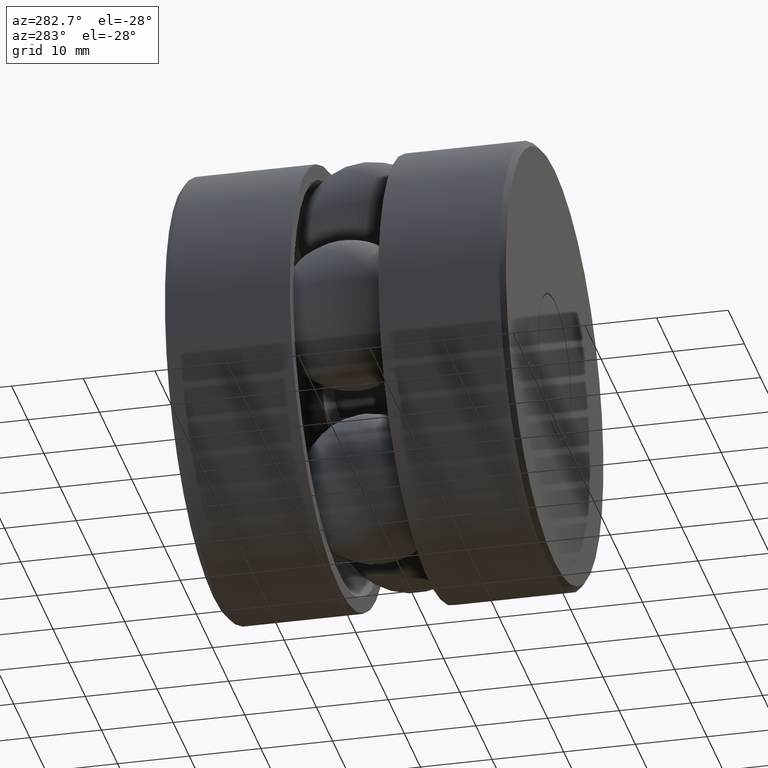
[diagram: clean part render]
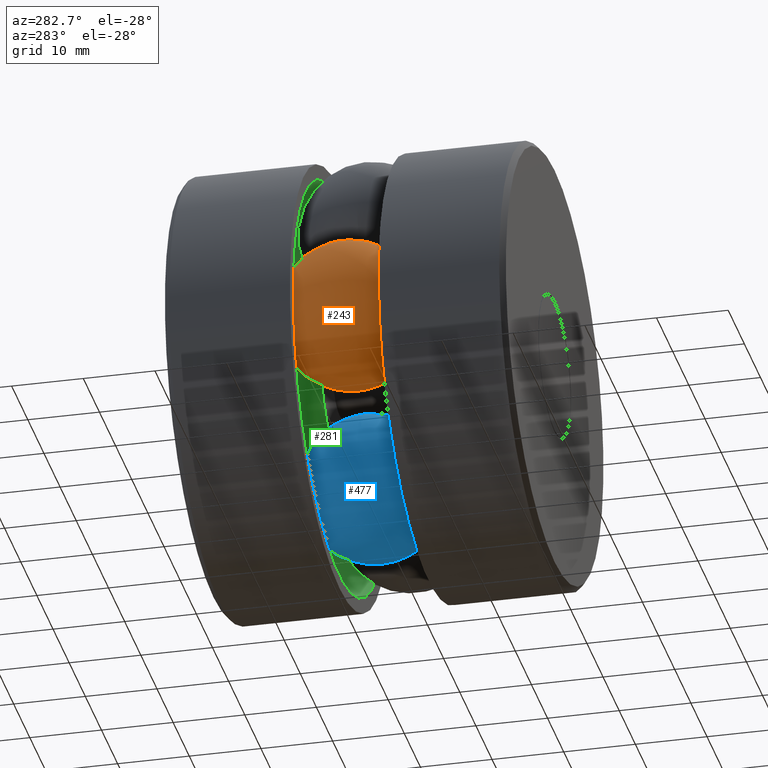
[diagram: same view with three faces highlighted in distinct colors, each labeled with its STEP entity id]
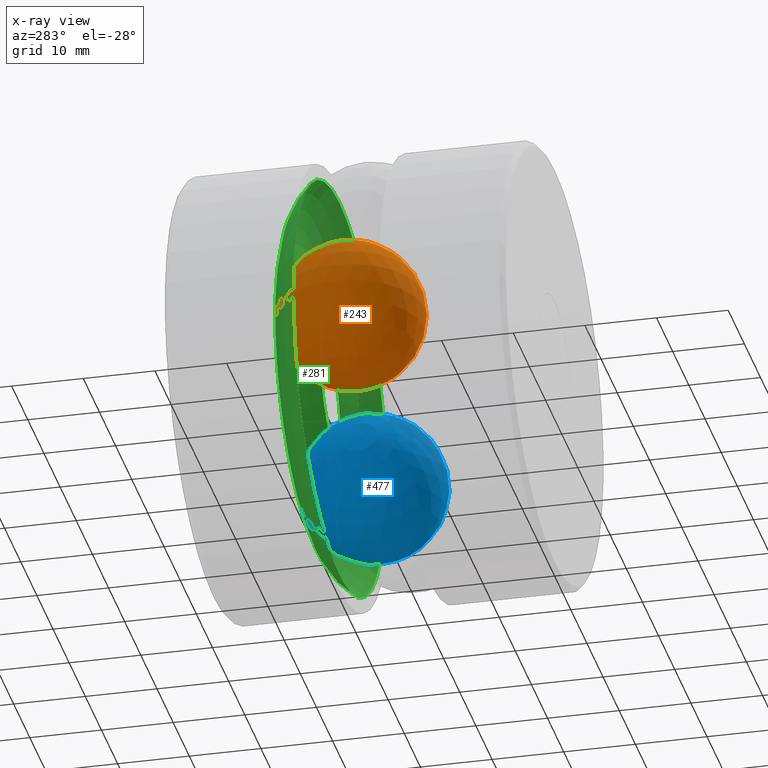
[diagram: x-ray of the same camera — body ghosted, the three highlighted faces saturated]
A machine part, auxiliary view with three faces highlighted in distinct colors.
The next image is the same camera in x-ray (body ghosted, the three faces saturated) — at least one of them is partly hidden behind the body in this view.
Their STEP definitions:

[orange] entity #243 — the highlighted spherical surface has radius 10.3188 mm.
#243 = ADVANCED_FACE ( 'NONE', ( ), #363, .T. ) ;
#297 = DIRECTION ( 'NONE',  ( 1.000000000000000000, 0.0000000000000000000, 0.0000000000000000000 ) ) ;
#359 = AXIS2_PLACEMENT_3D ( 'NONE', #532, #534, #297 ) ;
#363 = SPHERICAL_SURFACE ( 'NONE', #359, 0.4062500000000000600 ) ;
#532 = CARTESIAN_POINT ( 'NONE',  ( -0.8034999999999997700, 0.9375000000000000000, 0.0000000000000000000 ) ) ;
#534 = DIRECTION ( 'NONE',  ( 0.0000000000000000000, 0.0000000000000000000, -1.000000000000000000 ) ) ;

[blue] entity #477 — the highlighted spherical surface has radius 10.3188 mm.
#69 = DIRECTION ( 'NONE',  ( 0.3090169943749582200, 0.0000000000000000000, 0.9510565162951499800 ) ) ;
#190 = CARTESIAN_POINT ( 'NONE',  ( -0.2482951549802788500, 0.9375000000000000000, -0.7641739108431528900 ) ) ;
#288 = SPHERICAL_SURFACE ( 'NONE', #454, 0.4062500000000000600 ) ;
#454 = AXIS2_PLACEMENT_3D ( 'NONE', #190, #503, #69 ) ;
#477 = ADVANCED_FACE ( 'NONE', ( ), #288, .T. ) ;
#503 = DIRECTION ( 'NONE',  ( 0.9510565162951499800, 0.0000000000000000000, -0.3090169943749582200 ) ) ;

[green] entity #281 — the highlighted toroidal blend (fillet) surface has major radius 20.4089 mm and minor (blend) radius 10.3187 mm.
#26 = VERTEX_POINT ( 'NONE', #469 ) ;
#27 = AXIS2_PLACEMENT_3D ( 'NONE', #248, #527, #291 ) ;
#57 = DIRECTION ( 'NONE',  ( 0.0000000000000000000, 0.0000000000000000000, 1.000000000000000000 ) ) ;
#64 = EDGE_LOOP ( 'NONE', ( #72 ) ) ;
#72 = ORIENTED_EDGE ( 'NONE', *, *, #161, .F. ) ;
#130 = EDGE_CURVE ( 'NONE', #26, #26, #411, .T. ) ;
#131 = CARTESIAN_POINT ( 'NONE',  ( 0.0000000000000000000, 1.181249999999999900, 0.0000000000000000000 ) ) ;
#155 = TOROIDAL_SURFACE ( 'NONE', #439, 0.8034999999999997700, 0.4062499999999999400 ) ;
#161 = EDGE_CURVE ( 'NONE', #449, #449, #502, .T. ) ;
#170 = FACE_OUTER_BOUND ( 'NONE', #418, .T. ) ;
#175 = DIRECTION ( 'NONE',  ( 0.0000000000000000000, 0.0000000000000000000, 1.000000000000000000 ) ) ;
#233 = CARTESIAN_POINT ( 'NONE',  ( 0.0000000000000000000, 1.181249999999999900, 1.128499999999999600 ) ) ;
#248 = CARTESIAN_POINT ( 'NONE',  ( 0.0000000000000000000, 1.181249999999999900, 0.0000000000000000000 ) ) ;
#252 = FACE_OUTER_BOUND ( 'NONE', #64, .T. ) ;
#281 = ADVANCED_FACE ( 'NONE', ( #170, #252 ), #155, .F. ) ;
#289 = ORIENTED_EDGE ( 'NONE', *, *, #130, .T. ) ;
#291 = DIRECTION ( 'NONE',  ( 0.0000000000000000000, 0.0000000000000000000, 1.000000000000000000 ) ) ;
#405 = DIRECTION ( 'NONE',  ( -0.0000000000000000000, 1.000000000000000000, -0.0000000000000000000 ) ) ;
#411 = CIRCLE ( 'NONE', #500, 0.4784999999999997000 ) ;
#418 = EDGE_LOOP ( 'NONE', ( #289 ) ) ;
#439 = AXIS2_PLACEMENT_3D ( 'NONE', #493, #491, #57 ) ;
#449 = VERTEX_POINT ( 'NONE', #233 ) ;
#469 = CARTESIAN_POINT ( 'NONE',  ( 0.0000000000000000000, 1.181249999999999900, 0.4784999999999997000 ) ) ;
#491 = DIRECTION ( 'NONE',  ( -0.0000000000000000000, 1.000000000000000000, -0.0000000000000000000 ) ) ;
#493 = CARTESIAN_POINT ( 'NONE',  ( 0.0000000000000000000, 0.9375000000000000000, 0.0000000000000000000 ) ) ;
#500 = AXIS2_PLACEMENT_3D ( 'NONE', #131, #405, #175 ) ;
#502 = CIRCLE ( 'NONE', #27, 1.128499999999999600 ) ;
#527 = DIRECTION ( 'NONE',  ( -0.0000000000000000000, 1.000000000000000000, -0.0000000000000000000 ) ) ;